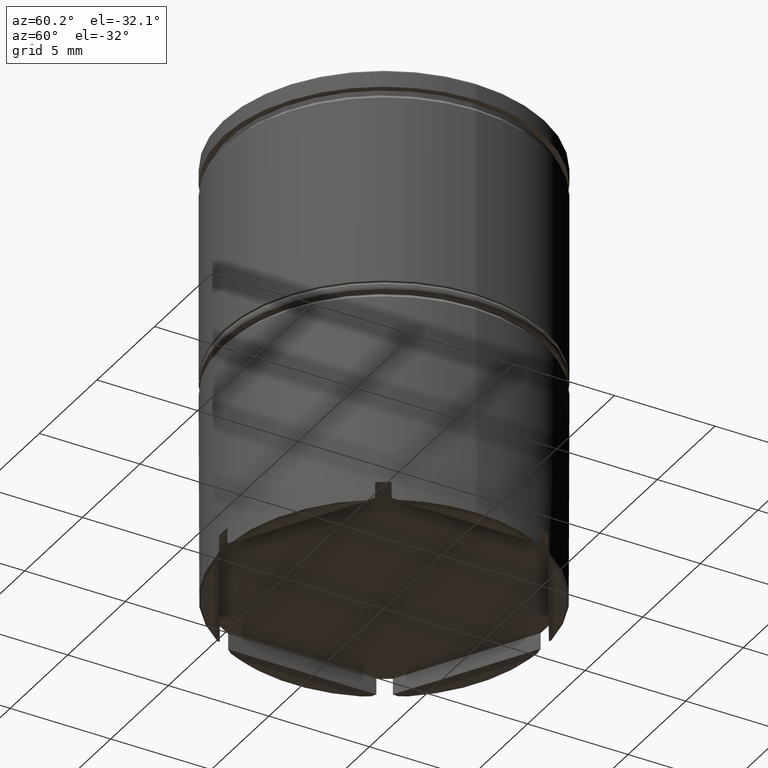
[diagram: clean part render]
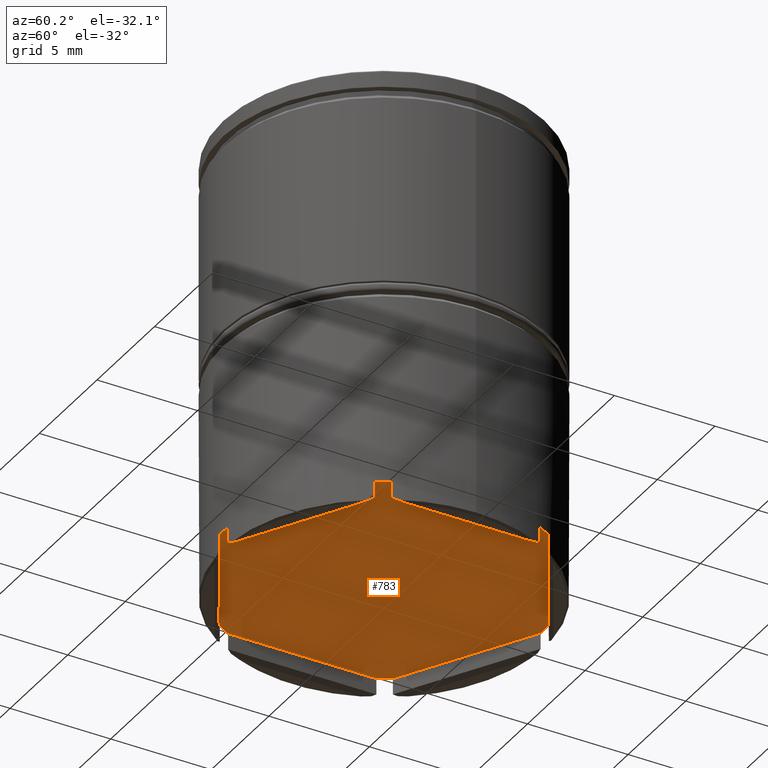
[diagram: same view with one face highlighted and labeled with its STEP entity id]
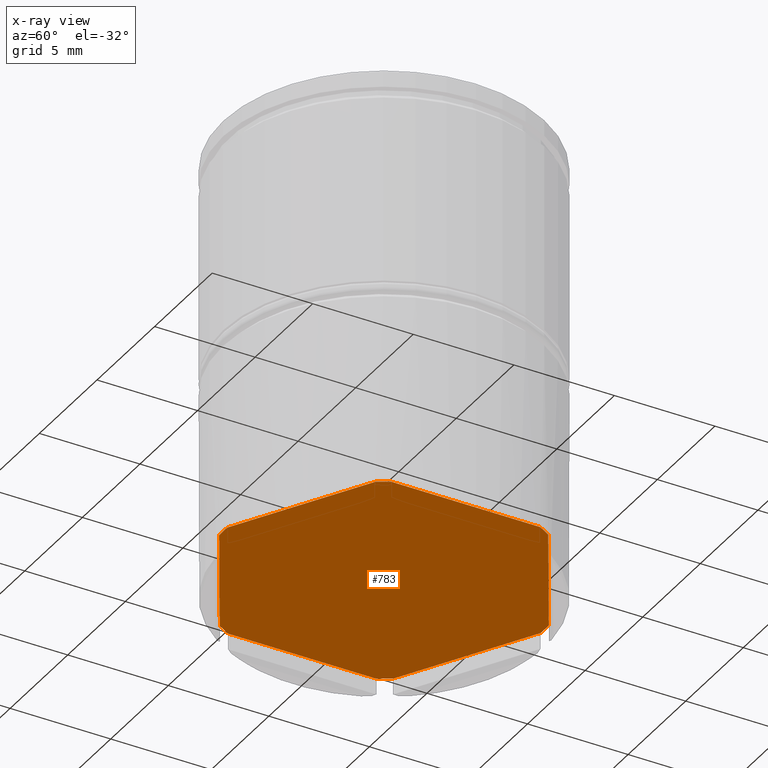
[diagram: x-ray of the same camera — body ghosted, the highlighted face saturated]
A machine part, auxiliary view. The second image highlights one B-rep face of the part: STEP entity #783.
The next image is the same camera in x-ray: the body ghosted, the highlighted face saturated — about 0% of this face is hidden behind the body in this view.
In plain terms, the highlighted planar face has unit normal (0, 0, -1).
Its self-contained STEP definition (entity closure, byte-faithful):
#4 = DIRECTION ( 'NONE',  ( -1.000000000000000000, 0.000000000000000000, -0.000000000000000000 ) ) ;
#86 = DIRECTION ( 'NONE',  ( -0.000000000000000000, -0.000000000000000000, 1.000000000000000000 ) ) ;
#98 = CARTESIAN_POINT ( 'NONE',  ( 0.000000000000000000, 0.000000000000000000, -20.99999999999999645 ) ) ;
#112 = EDGE_CURVE ( 'NONE', #275, #1189, #581, .T. ) ;
#128 = AXIS2_PLACEMENT_3D ( 'NONE', #319, #826, #200 ) ;
#139 = EDGE_CURVE ( 'NONE', #1633, #703, #349, .T. ) ;
#141 = CARTESIAN_POINT ( 'NONE',  ( 0.000000000000000000, 0.000000000000000000, -20.99999999999999645 ) ) ;
#143 = ORIENTED_EDGE ( 'NONE', *, *, #1201, .F. ) ;
#169 = LINE ( 'NONE', #503, #186 ) ;
#186 = VECTOR ( 'NONE', #521, 1000.000000000000000 ) ;
#200 = DIRECTION ( 'NONE',  ( -1.000000000000000000, -1.243449787580175325E-14, 0.000000000000000000 ) ) ;
#215 = CARTESIAN_POINT ( 'NONE',  ( -0.3574305019310927700, 7.992011225986188627, -20.99999999999999645 ) ) ;
#216 = DIRECTION ( 'NONE',  ( 0.8660254037844387076, 0.4999999999999998335, 0.000000000000000000 ) ) ;
#223 = DIRECTION ( 'NONE',  ( -0.000000000000000000, -0.000000000000000000, 1.000000000000000000 ) ) ;
#248 = VECTOR ( 'NONE', #1335, 1000.000000000000114 ) ;
#254 = CIRCLE ( 'NONE', #1080, 8.000000000000000000 ) ;
#259 = CARTESIAN_POINT ( 'NONE',  ( 0.000000000000000000, 0.000000000000000000, -20.99999999999999645 ) ) ;
#265 = VERTEX_POINT ( 'NONE', #1358 ) ;
#273 = DIRECTION ( 'NONE',  ( -1.000000000000000000, 1.154631945610162960E-14, 0.000000000000000000 ) ) ;
#275 = VERTEX_POINT ( 'NONE', #1455 ) ;
#278 = ORIENTED_EDGE ( 'NONE', *, *, #1507, .F. ) ;
#312 = LINE ( 'NONE', #820, #1583 ) ;
#319 = CARTESIAN_POINT ( 'NONE',  ( 0.000000000000000000, 0.000000000000000000, -20.99999999999999645 ) ) ;
#323 = DIRECTION ( 'NONE',  ( 1.057968027279689044E-16, -1.000000000000000000, 0.000000000000000000 ) ) ;
#329 = VECTOR ( 'NONE', #323, 1000.000000000000000 ) ;
#349 = LINE ( 'NONE', #1091, #329 ) ;
#355 = DIRECTION ( 'NONE',  ( -1.000000000000000000, 3.552713678800500929E-15, 0.000000000000000000 ) ) ;
#360 = CIRCLE ( 'NONE', #574, 8.000000000000000000 ) ;
#385 = EDGE_CURVE ( 'NONE', #1327, #1541, #584, .T. ) ;
#402 = VERTEX_POINT ( 'NONE', #913 ) ;
#427 = ORIENTED_EDGE ( 'NONE', *, *, #1162, .F. ) ;
#435 = VERTEX_POINT ( 'NONE', #769 ) ;
#443 = CARTESIAN_POINT ( 'NONE',  ( 6.742569498068909262, 4.305549507752845173, -20.99999999999999645 ) ) ;
#503 = CARTESIAN_POINT ( 'NONE',  ( -7.100000000000004086, -4.099186911246345488, -20.99999999999999645 ) ) ;
#521 = DIRECTION ( 'NONE',  ( -2.115936054559378087E-16, 1.000000000000000000, 0.000000000000000000 ) ) ;
#551 = VERTEX_POINT ( 'NONE', #443 ) ;
#574 = AXIS2_PLACEMENT_3D ( 'NONE', #98, #867, #722 ) ;
#581 = LINE ( 'NONE', #1461, #248 ) ;
#584 = LINE ( 'NONE', #1094, #1209 ) ;
#636 = LINE ( 'NONE', #1397, #843 ) ;
#664 = FACE_OUTER_BOUND ( 'NONE', #771, .T. ) ;
#669 = EDGE_CURVE ( 'NONE', #402, #265, #1581, .T. ) ;
#673 = DIRECTION ( 'NONE',  ( -0.8660254037844384856, 0.5000000000000002220, 0.000000000000000000 ) ) ;
#675 = ORIENTED_EDGE ( 'NONE', *, *, #1044, .F. ) ;
#701 = DIRECTION ( 'NONE',  ( -1.000000000000000000, 0.000000000000000000, 0.000000000000000000 ) ) ;
#703 = VERTEX_POINT ( 'NONE', #1227 ) ;
#709 = CARTESIAN_POINT ( 'NONE',  ( 0.000000000000000000, 0.000000000000000000, -20.99999999999999645 ) ) ;
#722 = DIRECTION ( 'NONE',  ( -1.000000000000000000, 0.000000000000000000, 0.000000000000000000 ) ) ;
#729 = AXIS2_PLACEMENT_3D ( 'NONE', #1467, #827, #701 ) ;
#750 = EDGE_CURVE ( 'NONE', #402, #435, #169, .T. ) ;
#757 = PLANE ( 'NONE',  #1210 ) ;
#762 = CARTESIAN_POINT ( 'NONE',  ( 7.100000000000005862, 3.686461718233341678, -20.99999999999999645 ) ) ;
#769 = CARTESIAN_POINT ( 'NONE',  ( -7.100000000000005862, 3.686461718233341678, -20.99999999999999645 ) ) ;
#771 = EDGE_LOOP ( 'NONE', ( #931, #1559, #1177, #143, #1161, #278, #1520, #675, #1279, #427, #1360, #1387 ) ) ;
#783 = ADVANCED_FACE ( 'NONE', ( #664 ), #757, .T. ) ;
#820 = CARTESIAN_POINT ( 'NONE',  ( -4.310144132208485433E-16, -8.198373822492692753, -20.99999999999999645 ) ) ;
#826 = DIRECTION ( 'NONE',  ( -0.000000000000000000, -0.000000000000000000, 1.000000000000000000 ) ) ;
#827 = DIRECTION ( 'NONE',  ( -0.000000000000000000, -0.000000000000000000, 1.000000000000000000 ) ) ;
#843 = VECTOR ( 'NONE', #1521, 1000.000000000000227 ) ;
#867 = DIRECTION ( 'NONE',  ( -0.000000000000000000, -0.000000000000000000, 1.000000000000000000 ) ) ;
#868 = AXIS2_PLACEMENT_3D ( 'NONE', #709, #86, #1095 ) ;
#913 = CARTESIAN_POINT ( 'NONE',  ( -7.100000000000004086, -3.686461718233344342, -20.99999999999999645 ) ) ;
#931 = ORIENTED_EDGE ( 'NONE', *, *, #750, .T. ) ;
#970 = EDGE_CURVE ( 'NONE', #1415, #265, #312, .T. ) ;
#1044 = EDGE_CURVE ( 'NONE', #275, #703, #1343, .T. ) ;
#1080 = AXIS2_PLACEMENT_3D ( 'NONE', #1494, #223, #355 ) ;
#1091 = CARTESIAN_POINT ( 'NONE',  ( 7.100000000000005862, 4.099186911246344600, -20.99999999999999645 ) ) ;
#1094 = CARTESIAN_POINT ( 'NONE',  ( -7.100000000000005862, 4.099186911246346376, -20.99999999999999645 ) ) ;
#1095 = DIRECTION ( 'NONE',  ( -1.000000000000000000, 0.000000000000000000, 0.000000000000000000 ) ) ;
#1157 = CARTESIAN_POINT ( 'NONE',  ( -6.742569498068907485, 4.305549507752846061, -20.99999999999999645 ) ) ;
#1161 = ORIENTED_EDGE ( 'NONE', *, *, #1224, .T. ) ;
#1162 = EDGE_CURVE ( 'NONE', #1415, #1189, #1369, .T. ) ;
#1177 = ORIENTED_EDGE ( 'NONE', *, *, #385, .T. ) ;
#1189 = VERTEX_POINT ( 'NONE', #1472 ) ;
#1201 = EDGE_CURVE ( 'NONE', #1427, #1541, #1449, .T. ) ;
#1209 = VECTOR ( 'NONE', #216, 1000.000000000000114 ) ;
#1210 = AXIS2_PLACEMENT_3D ( 'NONE', #259, #1532, #4 ) ;
#1224 = EDGE_CURVE ( 'NONE', #1427, #551, #636, .T. ) ;
#1227 = CARTESIAN_POINT ( 'NONE',  ( 7.100000000000005862, -3.686461718233339901, -20.99999999999999645 ) ) ;
#1279 = ORIENTED_EDGE ( 'NONE', *, *, #112, .T. ) ;
#1318 = AXIS2_PLACEMENT_3D ( 'NONE', #141, #1413, #273 ) ;
#1327 = VERTEX_POINT ( 'NONE', #1157 ) ;
#1329 = CARTESIAN_POINT ( 'NONE',  ( 0.3574305019310944909, 7.992011225986190404, -20.99999999999999645 ) ) ;
#1335 = DIRECTION ( 'NONE',  ( -0.8660254037844387076, -0.4999999999999998890, 0.000000000000000000 ) ) ;
#1343 = CIRCLE ( 'NONE', #128, 8.000000000000000000 ) ;
#1358 = CARTESIAN_POINT ( 'NONE',  ( -6.742569498068911038, -4.305549507752841620, -20.99999999999999645 ) ) ;
#1360 = ORIENTED_EDGE ( 'NONE', *, *, #970, .T. ) ;
#1369 = CIRCLE ( 'NONE', #868, 8.000000000000000000 ) ;
#1387 = ORIENTED_EDGE ( 'NONE', *, *, #669, .F. ) ;
#1397 = CARTESIAN_POINT ( 'NONE',  ( 0.000000000000000000, 8.198373822492690977, -20.99999999999999645 ) ) ;
#1413 = DIRECTION ( 'NONE',  ( -0.000000000000000000, -0.000000000000000000, 1.000000000000000000 ) ) ;
#1415 = VERTEX_POINT ( 'NONE', #1429 ) ;
#1427 = VERTEX_POINT ( 'NONE', #1329 ) ;
#1429 = CARTESIAN_POINT ( 'NONE',  ( -0.3574305019310940468, -7.992011225986188627, -20.99999999999999645 ) ) ;
#1449 = CIRCLE ( 'NONE', #1318, 8.000000000000000000 ) ;
#1455 = CARTESIAN_POINT ( 'NONE',  ( 6.742569498068905709, -4.305549507752848726, -20.99999999999999645 ) ) ;
#1461 = CARTESIAN_POINT ( 'NONE',  ( 7.100000000000006750, -4.099186911246347265, -20.99999999999999645 ) ) ;
#1467 = CARTESIAN_POINT ( 'NONE',  ( 0.000000000000000000, 0.000000000000000000, -20.99999999999999645 ) ) ;
#1472 = CARTESIAN_POINT ( 'NONE',  ( 0.3574305019310975440, -7.992011225986188627, -20.99999999999999645 ) ) ;
#1485 = EDGE_CURVE ( 'NONE', #1327, #435, #254, .T. ) ;
#1494 = CARTESIAN_POINT ( 'NONE',  ( 0.000000000000000000, 0.000000000000000000, -20.99999999999999645 ) ) ;
#1507 = EDGE_CURVE ( 'NONE', #1633, #551, #360, .T. ) ;
#1520 = ORIENTED_EDGE ( 'NONE', *, *, #139, .T. ) ;
#1521 = DIRECTION ( 'NONE',  ( 0.8660254037844385966, -0.5000000000000000000, 0.000000000000000000 ) ) ;
#1532 = DIRECTION ( 'NONE',  ( 0.000000000000000000, 0.000000000000000000, -1.000000000000000000 ) ) ;
#1541 = VERTEX_POINT ( 'NONE', #215 ) ;
#1559 = ORIENTED_EDGE ( 'NONE', *, *, #1485, .F. ) ;
#1581 = CIRCLE ( 'NONE', #729, 8.000000000000000000 ) ;
#1583 = VECTOR ( 'NONE', #673, 1000.000000000000114 ) ;
#1633 = VERTEX_POINT ( 'NONE', #762 ) ;